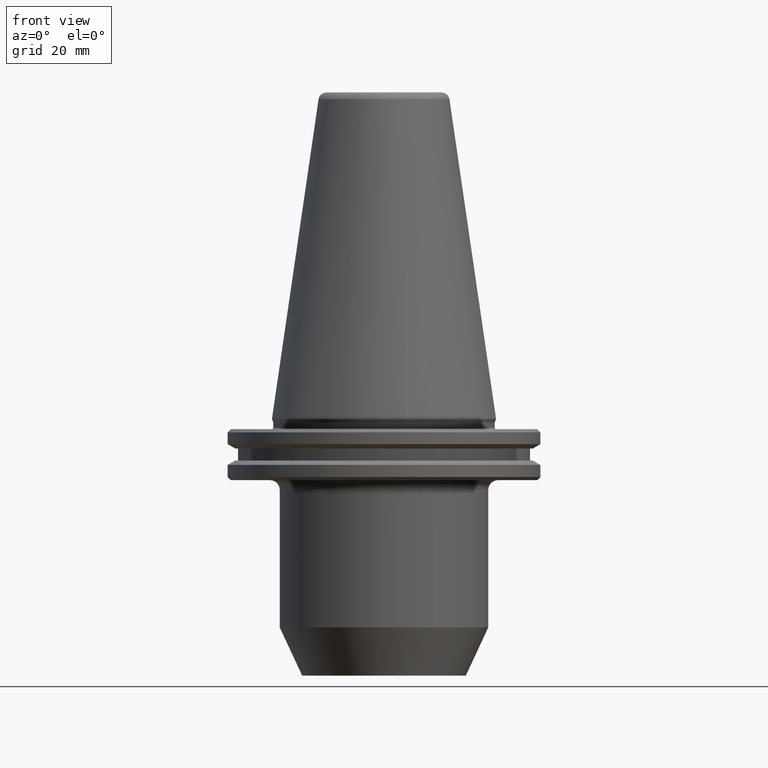
[diagram: clean part render]
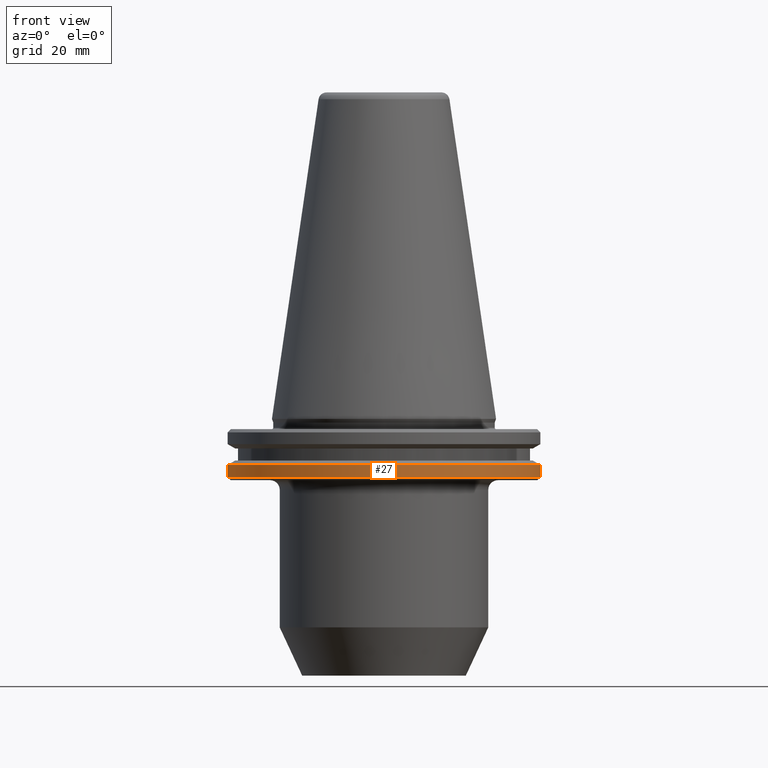
[diagram: same view with one face highlighted and labeled with its STEP entity id]
A machine part, front view. The second image highlights one B-rep face of the part: STEP entity #27.
In plain terms, the highlighted cylindrical surface (partial cylindrical patch) has radius 48.75 mm, axis along (-0, -0, 1).
Its self-contained STEP definition (entity closure, byte-faithful):
#16 = EDGE_CURVE ( 'NONE', #397, #152, #253, .T. ) ;
#26 = VERTEX_POINT ( 'NONE', #419 ) ;
#27 = ADVANCED_FACE ( 'NONE', ( #828 ), #617, .T. ) ;
#35 = VECTOR ( 'NONE', #714, 1000.000000000000000 ) ;
#46 = EDGE_CURVE ( 'NONE', #26, #899, #596, .T. ) ;
#106 = VECTOR ( 'NONE', #483, 1000.000000000000000 ) ;
#136 = CARTESIAN_POINT ( 'NONE',  ( 48.75000000000018500, 0.0000000000000000000, 101.7499999999999600 ) ) ;
#152 = VERTEX_POINT ( 'NONE', #868 ) ;
#186 = LINE ( 'NONE', #785, #106 ) ;
#195 = EDGE_CURVE ( 'NONE', #152, #899, #630, .T. ) ;
#234 = CARTESIAN_POINT ( 'NONE',  ( 0.0000000000000000000, 0.0000000000000000000, 101.7499999999999600 ) ) ;
#250 = CARTESIAN_POINT ( 'NONE',  ( -48.75000000000018500, 5.970153145843369200E-015, -18.09999999999950400 ) ) ;
#253 = CIRCLE ( 'NONE', #962, 48.75000000000018500 ) ;
#283 = DIRECTION ( 'NONE',  ( -0.0000000000000000000, -0.0000000000000000000, 1.000000000000000000 ) ) ;
#302 = AXIS2_PLACEMENT_3D ( 'NONE', #234, #598, #810 ) ;
#397 = VERTEX_POINT ( 'NONE', #250 ) ;
#419 = CARTESIAN_POINT ( 'NONE',  ( -48.75000000000018500, 5.970153145843369200E-015, -14.34759526419204800 ) ) ;
#455 = CARTESIAN_POINT ( 'NONE',  ( 0.0000000000000000000, 0.0000000000000000000, -14.34759526419204800 ) ) ;
#483 = DIRECTION ( 'NONE',  ( -0.0000000000000000000, -0.0000000000000000000, 1.000000000000000000 ) ) ;
#515 = ORIENTED_EDGE ( 'NONE', *, *, #46, .F. ) ;
#561 = EDGE_LOOP ( 'NONE', ( #599, #974, #952, #515 ) ) ;
#596 = CIRCLE ( 'NONE', #893, 48.75000000000018500 ) ;
#598 = DIRECTION ( 'NONE',  ( -0.0000000000000000000, -0.0000000000000000000, 1.000000000000000000 ) ) ;
#599 = ORIENTED_EDGE ( 'NONE', *, *, #607, .F. ) ;
#607 = EDGE_CURVE ( 'NONE', #397, #26, #186, .T. ) ;
#608 = DIRECTION ( 'NONE',  ( 1.000000000000000000, 0.0000000000000000000, 0.0000000000000000000 ) ) ;
#617 = CYLINDRICAL_SURFACE ( 'NONE', #302, 48.75000000000018500 ) ;
#630 = LINE ( 'NONE', #136, #35 ) ;
#714 = DIRECTION ( 'NONE',  ( -0.0000000000000000000, -0.0000000000000000000, 1.000000000000000000 ) ) ;
#750 = CARTESIAN_POINT ( 'NONE',  ( 0.0000000000000000000, 0.0000000000000000000, -18.09999999999950400 ) ) ;
#755 = CARTESIAN_POINT ( 'NONE',  ( 48.75000000000018500, 0.0000000000000000000, -14.34759526419204800 ) ) ;
#785 = CARTESIAN_POINT ( 'NONE',  ( -48.75000000000018500, 5.970153145843369200E-015, 101.7499999999999600 ) ) ;
#810 = DIRECTION ( 'NONE',  ( 1.000000000000000000, 0.0000000000000000000, 0.0000000000000000000 ) ) ;
#828 = FACE_OUTER_BOUND ( 'NONE', #561, .T. ) ;
#831 = DIRECTION ( 'NONE',  ( 1.000000000000000000, 0.0000000000000000000, 0.0000000000000000000 ) ) ;
#857 = DIRECTION ( 'NONE',  ( -0.0000000000000000000, -0.0000000000000000000, 1.000000000000000000 ) ) ;
#868 = CARTESIAN_POINT ( 'NONE',  ( 48.75000000000018500, 0.0000000000000000000, -18.09999999999950400 ) ) ;
#893 = AXIS2_PLACEMENT_3D ( 'NONE', #455, #857, #608 ) ;
#899 = VERTEX_POINT ( 'NONE', #755 ) ;
#952 = ORIENTED_EDGE ( 'NONE', *, *, #195, .T. ) ;
#962 = AXIS2_PLACEMENT_3D ( 'NONE', #750, #283, #831 ) ;
#974 = ORIENTED_EDGE ( 'NONE', *, *, #16, .T. ) ;